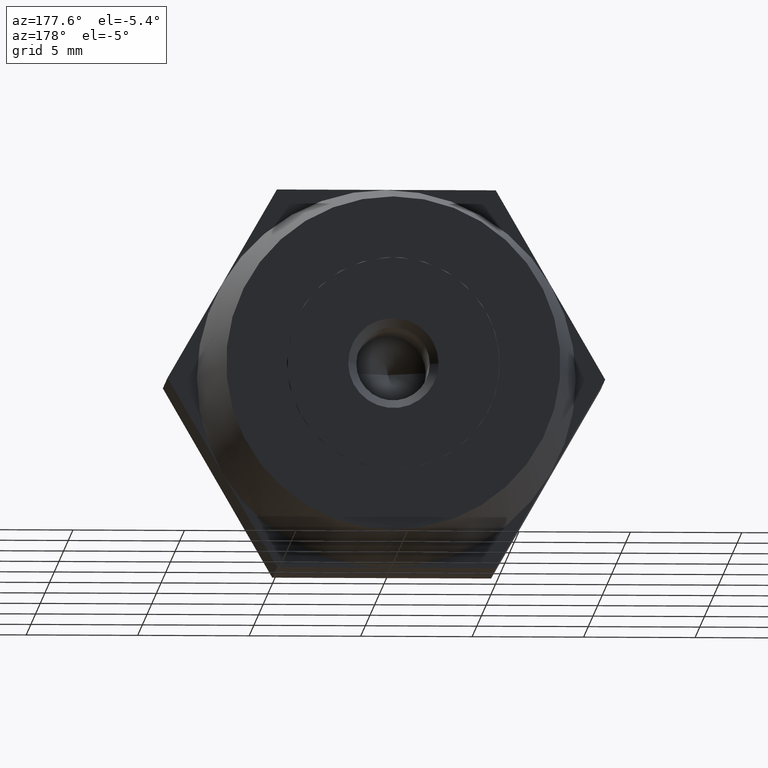
[diagram: clean part render]
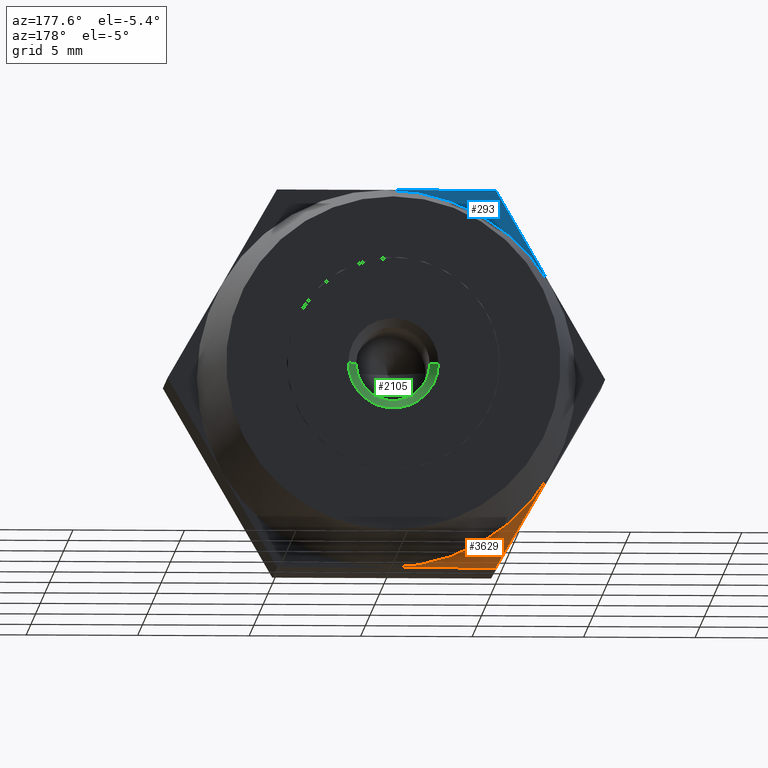
[diagram: same view with three faces highlighted in distinct colors, each labeled with its STEP entity id]
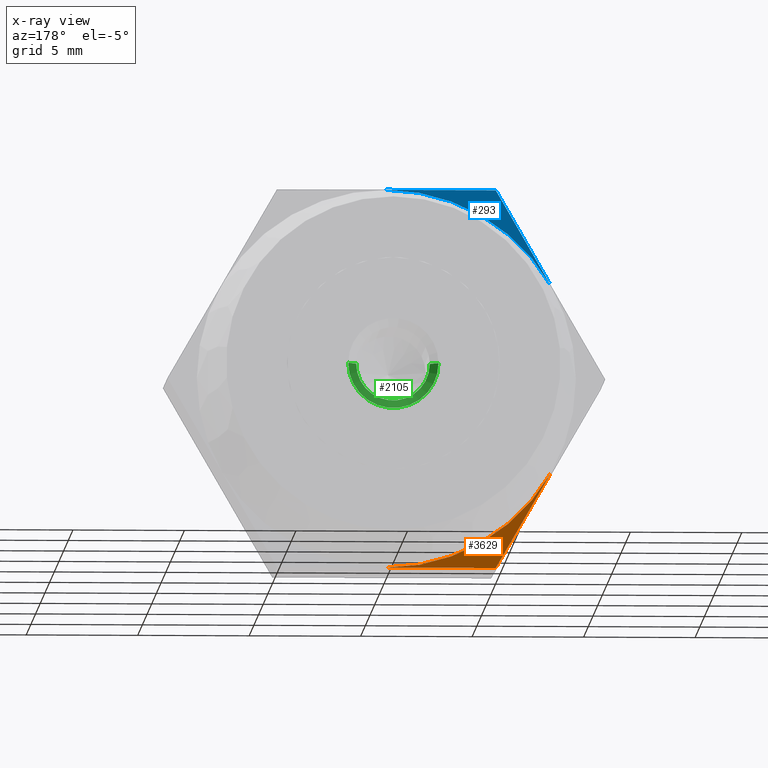
[diagram: x-ray of the same camera — body ghosted, the three highlighted faces saturated]
A machine part, auxiliary view with three faces highlighted in distinct colors.
The next image is the same camera in x-ray (body ghosted, the three faces saturated) — at least one of them is partly hidden behind the body in this view.
Their STEP definitions:

[orange] entity #3629 — the highlighted planar face has unit normal (0, 1, 0).
#19 = EDGE_CURVE ( 'NONE', #2049, #1268, #2041, .T. ) ;
#88 = DIRECTION ( 'NONE',  ( -0.4999999999999998900, 0.0000000000000000000, 0.8660254037844387100 ) ) ;
#150 = EDGE_CURVE ( 'NONE', #1268, #2233, #2082, .T. ) ;
#252 = EDGE_LOOP ( 'NONE', ( #584, #1342, #3238 ) ) ;
#291 = CARTESIAN_POINT ( 'NONE',  ( 4.907477288111810100, 2.500000000000000000, -8.500000000000000000 ) ) ;
#381 = CARTESIAN_POINT ( 'NONE',  ( -4.907477288111829600, 2.500000000000000000, -8.500000000000000000 ) ) ;
#584 = ORIENTED_EDGE ( 'NONE', *, *, #3648, .F. ) ;
#628 = DIRECTION ( 'NONE',  ( 0.0000000000000000000, 1.000000000000000000, 0.0000000000000000000 ) ) ;
#698 = AXIS2_PLACEMENT_3D ( 'NONE', #3028, #1221, #1164 ) ;
#763 = FACE_OUTER_BOUND ( 'NONE', #252, .T. ) ;
#1061 = CARTESIAN_POINT ( 'NONE',  ( -4.907477288111829600, 2.500000000000000000, -8.500000000000000000 ) ) ;
#1164 = DIRECTION ( 'NONE',  ( 0.0000000000000000000, 0.0000000000000000000, 1.000000000000000000 ) ) ;
#1182 = CARTESIAN_POINT ( 'NONE',  ( 0.0000000000000000000, 2.500000000000000000, 0.0000000000000000000 ) ) ;
#1194 = DIRECTION ( 'NONE',  ( 0.0000000000000000000, 0.0000000000000000000, 1.000000000000000000 ) ) ;
#1221 = DIRECTION ( 'NONE',  ( 0.0000000000000000000, 1.000000000000000000, 0.0000000000000000000 ) ) ;
#1268 = VERTEX_POINT ( 'NONE', #1061 ) ;
#1342 = ORIENTED_EDGE ( 'NONE', *, *, #19, .T. ) ;
#1394 = CARTESIAN_POINT ( 'NONE',  ( -7.361215932167740000, 2.500000000000000000, -4.250000000000000000 ) ) ;
#1475 = DIRECTION ( 'NONE',  ( -1.000000000000000000, 0.0000000000000000000, 0.0000000000000000000 ) ) ;
#1485 = PLANE ( 'NONE',  #2584 ) ;
#1956 = VECTOR ( 'NONE', #1475, 1000.000000000000000 ) ;
#2041 = LINE ( 'NONE', #291, #1956 ) ;
#2049 = VERTEX_POINT ( 'NONE', #3102 ) ;
#2082 = LINE ( 'NONE', #381, #3241 ) ;
#2233 = VERTEX_POINT ( 'NONE', #1394 ) ;
#2439 = CIRCLE ( 'NONE', #698, 8.500000000000000000 ) ;
#2584 = AXIS2_PLACEMENT_3D ( 'NONE', #1182, #628, #1194 ) ;
#3028 = CARTESIAN_POINT ( 'NONE',  ( 0.0000000000000000000, 2.500000000000000000, 0.0000000000000000000 ) ) ;
#3102 = CARTESIAN_POINT ( 'NONE',  ( 0.0000000000000000000, 2.500000000000000000, -8.500000000000000000 ) ) ;
#3238 = ORIENTED_EDGE ( 'NONE', *, *, #150, .T. ) ;
#3241 = VECTOR ( 'NONE', #88, 1000.000000000000000 ) ;
#3629 = ADVANCED_FACE ( 'NONE', ( #763 ), #1485, .T. ) ;
#3648 = EDGE_CURVE ( 'NONE', #2049, #2233, #2439, .T. ) ;

[blue] entity #293 — the highlighted planar face has unit normal (0, 1, 0).
#258 = CARTESIAN_POINT ( 'NONE',  ( -4.907477288111829600, 2.500000000000000000, 8.500000000000000000 ) ) ;
#293 = ADVANCED_FACE ( 'NONE', ( #2927 ), #2864, .T. ) ;
#297 = ORIENTED_EDGE ( 'NONE', *, *, #3410, .F. ) ;
#352 = DIRECTION ( 'NONE',  ( 1.000000000000000000, 0.0000000000000000000, 1.767428939690774800E-016 ) ) ;
#463 = AXIS2_PLACEMENT_3D ( 'NONE', #2575, #2880, #3135 ) ;
#562 = EDGE_LOOP ( 'NONE', ( #297, #3476, #3472 ) ) ;
#848 = DIRECTION ( 'NONE',  ( 0.0000000000000000000, 0.0000000000000000000, 1.000000000000000000 ) ) ;
#871 = CARTESIAN_POINT ( 'NONE',  ( 0.0000000000000000000, 2.500000000000000000, 0.0000000000000000000 ) ) ;
#1082 = CARTESIAN_POINT ( 'NONE',  ( -1.502314598737160000E-015, 2.500000000000000000, 8.500000000000000000 ) ) ;
#1151 = CARTESIAN_POINT ( 'NONE',  ( -9.814954576223648500, 2.500000000000000000, 1.646851074874740100E-015 ) ) ;
#1170 = VERTEX_POINT ( 'NONE', #2275 ) ;
#1656 = VECTOR ( 'NONE', #1722, 1000.000000000000000 ) ;
#1722 = DIRECTION ( 'NONE',  ( 0.4999999999999998900, 0.0000000000000000000, 0.8660254037844387100 ) ) ;
#2109 = VECTOR ( 'NONE', #352, 1000.000000000000000 ) ;
#2275 = CARTESIAN_POINT ( 'NONE',  ( -7.361215932167740000, 2.500000000000000000, 4.250000000000000000 ) ) ;
#2339 = EDGE_CURVE ( 'NONE', #1170, #2843, #3159, .T. ) ;
#2575 = CARTESIAN_POINT ( 'NONE',  ( 0.0000000000000000000, 2.500000000000000000, 0.0000000000000000000 ) ) ;
#2662 = DIRECTION ( 'NONE',  ( 0.0000000000000000000, 1.000000000000000000, 0.0000000000000000000 ) ) ;
#2744 = LINE ( 'NONE', #3568, #2109 ) ;
#2843 = VERTEX_POINT ( 'NONE', #258 ) ;
#2864 = PLANE ( 'NONE',  #463 ) ;
#2880 = DIRECTION ( 'NONE',  ( 0.0000000000000000000, 1.000000000000000000, 0.0000000000000000000 ) ) ;
#2927 = FACE_OUTER_BOUND ( 'NONE', #562, .T. ) ;
#3133 = AXIS2_PLACEMENT_3D ( 'NONE', #871, #2662, #848 ) ;
#3135 = DIRECTION ( 'NONE',  ( 0.0000000000000000000, 0.0000000000000000000, 1.000000000000000000 ) ) ;
#3159 = LINE ( 'NONE', #1151, #1656 ) ;
#3276 = VERTEX_POINT ( 'NONE', #1082 ) ;
#3410 = EDGE_CURVE ( 'NONE', #1170, #3276, #3725, .T. ) ;
#3472 = ORIENTED_EDGE ( 'NONE', *, *, #3697, .T. ) ;
#3476 = ORIENTED_EDGE ( 'NONE', *, *, #2339, .T. ) ;
#3568 = CARTESIAN_POINT ( 'NONE',  ( -4.907477288111829600, 2.500000000000000000, 8.500000000000000000 ) ) ;
#3697 = EDGE_CURVE ( 'NONE', #2843, #3276, #2744, .T. ) ;
#3725 = CIRCLE ( 'NONE', #3133, 8.500000000000000000 ) ;

[green] entity #2105 — the highlighted conical surface has half-angle 45 deg.
#78 = CARTESIAN_POINT ( 'NONE',  ( 0.0000000000000000000, 6.500000000000000000, 2.024999999999999900 ) ) ;
#82 = CARTESIAN_POINT ( 'NONE',  ( 2.479909768273389800E-016, 6.500000000000000000, -2.024999999999999900 ) ) ;
#103 = DIRECTION ( 'NONE',  ( 0.0000000000000000000, 0.7071067811865470200, 0.7071067811865480200 ) ) ;
#140 = DIRECTION ( 'NONE',  ( 0.0000000000000000000, 0.0000000000000000000, 1.000000000000000000 ) ) ;
#224 = FACE_OUTER_BOUND ( 'NONE', #770, .T. ) ;
#246 = DIRECTION ( 'NONE',  ( 0.0000000000000000000, 0.0000000000000000000, 1.000000000000000000 ) ) ;
#521 = EDGE_CURVE ( 'NONE', #2975, #1603, #1273, .T. ) ;
#567 = VERTEX_POINT ( 'NONE', #2158 ) ;
#770 = EDGE_LOOP ( 'NONE', ( #1065, #2261, #1220, #3234 ) ) ;
#853 = VECTOR ( 'NONE', #103, 1000.000000000000000 ) ;
#873 = CARTESIAN_POINT ( 'NONE',  ( 0.0000000000000000000, 6.125000000000000000, 1.649999999999999900 ) ) ;
#1065 = ORIENTED_EDGE ( 'NONE', *, *, #521, .F. ) ;
#1114 = EDGE_CURVE ( 'NONE', #2598, #2975, #1166, .T. ) ;
#1166 = CIRCLE ( 'NONE', #2487, 1.649999999999999900 ) ;
#1220 = ORIENTED_EDGE ( 'NONE', *, *, #3073, .T. ) ;
#1273 = LINE ( 'NONE', #82, #2401 ) ;
#1310 = CARTESIAN_POINT ( 'NONE',  ( 0.0000000000000000000, 6.500000000000000000, 0.0000000000000000000 ) ) ;
#1315 = DIRECTION ( 'NONE',  ( 0.0000000000000000000, 1.000000000000000000, 0.0000000000000000000 ) ) ;
#1525 = CARTESIAN_POINT ( 'NONE',  ( 2.020667218593132800E-016, 6.125000000000000000, -1.649999999999999900 ) ) ;
#1603 = VERTEX_POINT ( 'NONE', #1660 ) ;
#1644 = AXIS2_PLACEMENT_3D ( 'NONE', #3855, #3589, #246 ) ;
#1653 = LINE ( 'NONE', #78, #853 ) ;
#1658 = DIRECTION ( 'NONE',  ( 0.0000000000000000000, 1.000000000000000000, 0.0000000000000000000 ) ) ;
#1660 = CARTESIAN_POINT ( 'NONE',  ( 2.479909768273389800E-016, 6.500000000000000000, -2.024999999999999900 ) ) ;
#2105 = ADVANCED_FACE ( 'NONE', ( #224 ), #3748, .F. ) ;
#2158 = CARTESIAN_POINT ( 'NONE',  ( 0.0000000000000000000, 6.500000000000000000, 2.024999999999999900 ) ) ;
#2261 = ORIENTED_EDGE ( 'NONE', *, *, #1114, .F. ) ;
#2378 = AXIS2_PLACEMENT_3D ( 'NONE', #1310, #1658, #140 ) ;
#2401 = VECTOR ( 'NONE', #2776, 1000.000000000000000 ) ;
#2487 = AXIS2_PLACEMENT_3D ( 'NONE', #2555, #1315, #3432 ) ;
#2555 = CARTESIAN_POINT ( 'NONE',  ( 0.0000000000000000000, 6.125000000000000000, 0.0000000000000000000 ) ) ;
#2598 = VERTEX_POINT ( 'NONE', #873 ) ;
#2776 = DIRECTION ( 'NONE',  ( 8.659560562354939000E-017, 0.7071067811865470200, -0.7071067811865480200 ) ) ;
#2975 = VERTEX_POINT ( 'NONE', #1525 ) ;
#3073 = EDGE_CURVE ( 'NONE', #2598, #567, #1653, .T. ) ;
#3234 = ORIENTED_EDGE ( 'NONE', *, *, #3467, .T. ) ;
#3427 = CIRCLE ( 'NONE', #1644, 2.024999999999999900 ) ;
#3432 = DIRECTION ( 'NONE',  ( 0.0000000000000000000, 0.0000000000000000000, 1.000000000000000000 ) ) ;
#3467 = EDGE_CURVE ( 'NONE', #567, #1603, #3427, .T. ) ;
#3589 = DIRECTION ( 'NONE',  ( 0.0000000000000000000, 1.000000000000000000, 0.0000000000000000000 ) ) ;
#3748 = CONICAL_SURFACE ( 'NONE', #2378, 2.024999999999999900, 0.7853981633974490600 ) ;
#3855 = CARTESIAN_POINT ( 'NONE',  ( 0.0000000000000000000, 6.500000000000000000, 0.0000000000000000000 ) ) ;